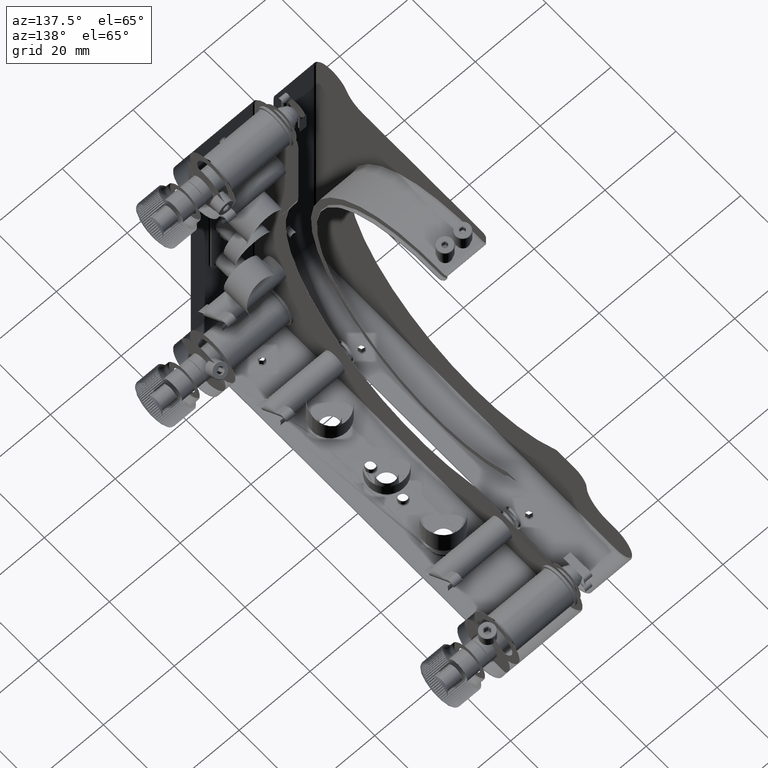
[diagram: clean part render]
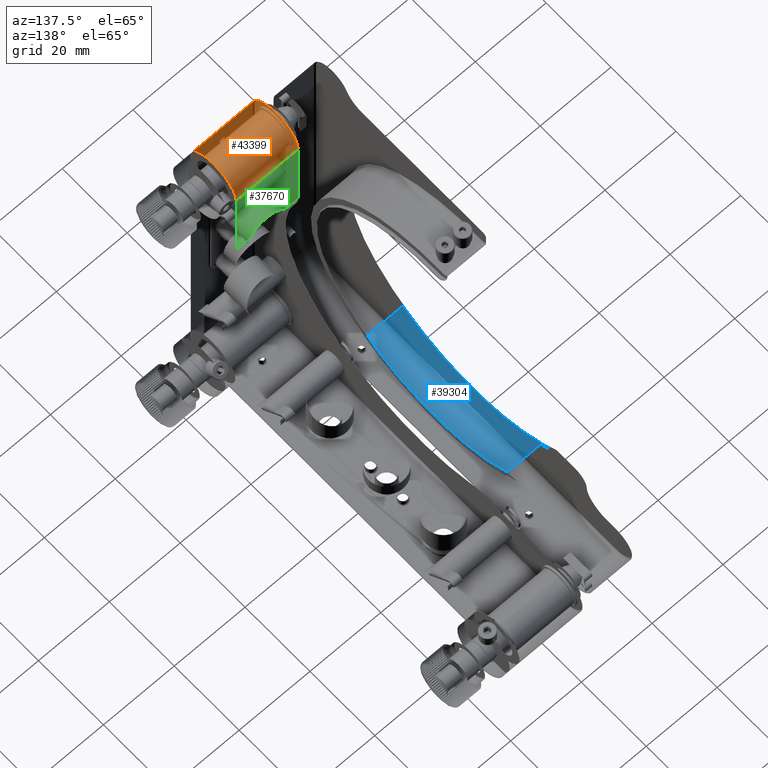
[diagram: same view with three faces highlighted in distinct colors, each labeled with its STEP entity id]
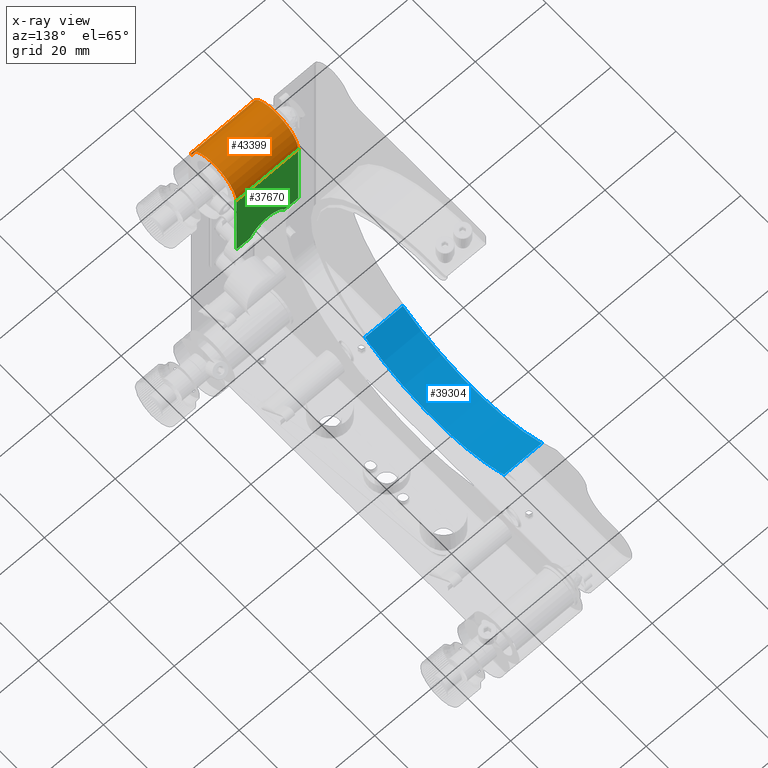
[diagram: x-ray of the same camera — body ghosted, the three highlighted faces saturated]
A machine part, auxiliary view with three faces highlighted in distinct colors.
The next image is the same camera in x-ray (body ghosted, the three faces saturated) — at least one of them is partly hidden behind the body in this view.
Their STEP definitions:

[orange] entity #43399 — the highlighted cylindrical surface (edge-blend (fillet) strip) has radius 7 mm, axis along (-1, 0, 0).
#1553 = DIRECTION ( 'NONE',  ( -1.000000000000000000, 0.000000000000000000, 0.000000000000000000 ) ) ;
#2271 = EDGE_CURVE ( 'NONE', #24433, #32291, #41974, .T. ) ;
#11128 = CARTESIAN_POINT ( 'NONE',  ( 9.000000000000001776, -43.79999999999999716, 43.79999999999998295 ) ) ;
#11200 = VERTEX_POINT ( 'NONE', #26955 ) ;
#13512 = VECTOR ( 'NONE', #36109, 1000.000000000000000 ) ;
#14666 = FACE_OUTER_BOUND ( 'NONE', #39543, .T. ) ;
#16500 = ORIENTED_EDGE ( 'NONE', *, *, #21770, .F. ) ;
#17517 = LINE ( 'NONE', #33767, #53204 ) ;
#19521 = CYLINDRICAL_SURFACE ( 'NONE', #23287, 6.999999999999999112 ) ;
#21770 = EDGE_CURVE ( 'NONE', #29273, #32291, #17517, .T. ) ;
#23280 = DIRECTION ( 'NONE',  ( 0.000000000000000000, 0.000000000000000000, -1.000000000000000000 ) ) ;
#23287 = AXIS2_PLACEMENT_3D ( 'NONE', #11128, #27912, #27643 ) ;
#24433 = VERTEX_POINT ( 'NONE', #43555 ) ;
#26471 = CIRCLE ( 'NONE', #29903, 6.999999999999999112 ) ;
#26831 = CARTESIAN_POINT ( 'NONE',  ( 8.749999999990905053, -36.79999999999277094, 43.79999999999997584 ) ) ;
#26955 = CARTESIAN_POINT ( 'NONE',  ( 8.750000000000000000, -50.79999999999999716, 43.79999999999998295 ) ) ;
#27643 = DIRECTION ( 'NONE',  ( 0.000000000000000000, 0.000000000000000000, 1.000000000000000000 ) ) ;
#27912 = DIRECTION ( 'NONE',  ( -1.000000000000000000, 0.000000000000000000, 0.000000000000000000 ) ) ;
#29273 = VERTEX_POINT ( 'NONE', #26831 ) ;
#29610 = ORIENTED_EDGE ( 'NONE', *, *, #2271, .T. ) ;
#29903 = AXIS2_PLACEMENT_3D ( 'NONE', #38932, #1553, #38394 ) ;
#31500 = LINE ( 'NONE', #36367, #13512 ) ;
#32291 = VERTEX_POINT ( 'NONE', #35415 ) ;
#33214 = DIRECTION ( 'NONE',  ( -1.000000000000000000, -0.000000000000000000, -0.000000000000000000 ) ) ;
#33500 = EDGE_CURVE ( 'NONE', #11200, #29273, #26471, .T. ) ;
#33767 = CARTESIAN_POINT ( 'NONE',  ( -9.000000000000001776, -36.79999999999999716, 43.79999999999998295 ) ) ;
#35415 = CARTESIAN_POINT ( 'NONE',  ( -8.750000000019316104, -36.79999999999277094, 43.79999999999999716 ) ) ;
#35480 = DIRECTION ( 'NONE',  ( -1.000000000000000000, -0.000000000000000000, -0.000000000000000000 ) ) ;
#36109 = DIRECTION ( 'NONE',  ( 1.000000000000000000, 0.000000000000000000, -0.000000000000000000 ) ) ;
#36367 = CARTESIAN_POINT ( 'NONE',  ( 9.000000000000001776, -50.79999999999999716, 43.79999999999998295 ) ) ;
#37659 = AXIS2_PLACEMENT_3D ( 'NONE', #39257, #35480, #23280 ) ;
#38394 = DIRECTION ( 'NONE',  ( 0.000000000000000000, 0.000000000000000000, 1.000000000000000000 ) ) ;
#38932 = CARTESIAN_POINT ( 'NONE',  ( 8.749999999999998224, -43.79999999999999716, 43.79999999999998295 ) ) ;
#39257 = CARTESIAN_POINT ( 'NONE',  ( -8.750000000077307050, -43.79999999999999716, 43.79999999999998295 ) ) ;
#39543 = EDGE_LOOP ( 'NONE', ( #39902, #29610, #16500, #50983 ) ) ;
#39902 = ORIENTED_EDGE ( 'NONE', *, *, #45441, .F. ) ;
#41974 = CIRCLE ( 'NONE', #37659, 7.000000000028906655 ) ;
#43399 = ADVANCED_FACE ( 'NONE', ( #14666 ), #19521, .F. ) ;
#43555 = CARTESIAN_POINT ( 'NONE',  ( -8.750000000019316104, -50.80000000000723048, 43.79999999999998295 ) ) ;
#45441 = EDGE_CURVE ( 'NONE', #24433, #11200, #31500, .T. ) ;
#50983 = ORIENTED_EDGE ( 'NONE', *, *, #33500, .F. ) ;
#53204 = VECTOR ( 'NONE', #33214, 1000.000000000000000 ) ;

[blue] entity #39304 — the highlighted cylindrical surface (partial cylindrical patch) has radius 38.1 mm, axis along (-1, -0, -0).
#1279 = CARTESIAN_POINT ( 'NONE',  ( -13.50000000000001243, -21.41237127944769369, -31.51381214945413234 ) ) ;
#2817 = CARTESIAN_POINT ( 'NONE',  ( -13.50000000000000888, -21.41237127944769014, -31.51381214945413234 ) ) ;
#3221 = VECTOR ( 'NONE', #6565, 1000.000000000000000 ) ;
#3662 = VERTEX_POINT ( 'NONE', #32063 ) ;
#6565 = DIRECTION ( 'NONE',  ( 1.000000000000000000, 7.674958136682377096E-17, 8.466897840272592886E-17 ) ) ;
#8602 = EDGE_CURVE ( 'NONE', #51884, #19920, #33175, .T. ) ;
#9635 = DIRECTION ( 'NONE',  ( -9.106159978880878627E-17, 0.000000000000000000, 1.000000000000000000 ) ) ;
#10821 = DIRECTION ( 'NONE',  ( -1.000000000000000000, -7.674958136682377096E-17, -8.466897840272592886E-17 ) ) ;
#14719 = CARTESIAN_POINT ( 'NONE',  ( -13.50000000000001066, 21.41237127944768659, -31.51381214945413234 ) ) ;
#14903 = CARTESIAN_POINT ( 'NONE',  ( -24.20000000000001350, -8.944667923005411581E-15, 5.475220971051797392E-15 ) ) ;
#16012 = EDGE_CURVE ( 'NONE', #18045, #19920, #28263, .T. ) ;
#16437 = AXIS2_PLACEMENT_3D ( 'NONE', #42639, #21810, #30193 ) ;
#18045 = VERTEX_POINT ( 'NONE', #1279 ) ;
#18550 = FACE_OUTER_BOUND ( 'NONE', #18728, .T. ) ;
#18728 = EDGE_LOOP ( 'NONE', ( #37509, #31040, #23923, #42821 ) ) ;
#19920 = VERTEX_POINT ( 'NONE', #37199 ) ;
#21810 = DIRECTION ( 'NONE',  ( -1.000000000000000000, -7.674958136682377096E-17, -8.466897840272592886E-17 ) ) ;
#23923 = ORIENTED_EDGE ( 'NONE', *, *, #8602, .F. ) ;
#25150 = AXIS2_PLACEMENT_3D ( 'NONE', #43737, #46715, #9635 ) ;
#25860 = CYLINDRICAL_SURFACE ( 'NONE', #16437, 38.09999999999999432 ) ;
#28263 = LINE ( 'NONE', #2817, #35745 ) ;
#30193 = DIRECTION ( 'NONE',  ( -9.106159978880878627E-17, 0.000000000000000000, 1.000000000000000000 ) ) ;
#31040 = ORIENTED_EDGE ( 'NONE', *, *, #16012, .T. ) ;
#32063 = CARTESIAN_POINT ( 'NONE',  ( -13.50000000000001243, 21.41237127944768659, -31.51381214945413234 ) ) ;
#32323 = DIRECTION ( 'NONE',  ( -1.000000000000000000, -7.674958136682377096E-17, -8.466897840272592886E-17 ) ) ;
#33175 = CIRCLE ( 'NONE', #40113, 38.09999999999999432 ) ;
#34668 = CIRCLE ( 'NONE', #25150, 38.09999999999999432 ) ;
#35745 = VECTOR ( 'NONE', #32323, 1000.000000000000000 ) ;
#37199 = CARTESIAN_POINT ( 'NONE',  ( -24.20000000000000639, -21.41237127944769369, -31.51381214945413234 ) ) ;
#37509 = ORIENTED_EDGE ( 'NONE', *, *, #52995, .T. ) ;
#39304 = ADVANCED_FACE ( 'NONE', ( #18550 ), #25860, .T. ) ;
#40113 = AXIS2_PLACEMENT_3D ( 'NONE', #14903, #10821, #44645 ) ;
#42639 = CARTESIAN_POINT ( 'NONE',  ( -13.50000000000001243, -8.131516293641283255E-15, 6.396792817664476161E-15 ) ) ;
#42821 = ORIENTED_EDGE ( 'NONE', *, *, #47506, .T. ) ;
#43666 = LINE ( 'NONE', #14719, #3221 ) ;
#43737 = CARTESIAN_POINT ( 'NONE',  ( -13.50000000000001421, -8.131516293641283255E-15, 6.396792817664476161E-15 ) ) ;
#44645 = DIRECTION ( 'NONE',  ( -9.106159978880878627E-17, 1.000000000000000000, 3.816391647148976224E-17 ) ) ;
#45532 = CARTESIAN_POINT ( 'NONE',  ( -24.20000000000000995, 21.41237127944768304, -31.51381214945413234 ) ) ;
#46715 = DIRECTION ( 'NONE',  ( -1.000000000000000000, -7.674958136682377096E-17, -8.466897840272592886E-17 ) ) ;
#47506 = EDGE_CURVE ( 'NONE', #51884, #3662, #43666, .T. ) ;
#51884 = VERTEX_POINT ( 'NONE', #45532 ) ;
#52995 = EDGE_CURVE ( 'NONE', #3662, #18045, #34668, .T. ) ;

[green] entity #37670 — the highlighted planar face has unit normal (0, -1, 0).
#65 = CARTESIAN_POINT ( 'NONE',  ( -9.000000000000001776, -36.79999999999999716, 19.62963321104090753 ) ) ;
#163 = ORIENTED_EDGE ( 'NONE', *, *, #18342, .T. ) ;
#1258 = VERTEX_POINT ( 'NONE', #44507 ) ;
#2069 = DIRECTION ( 'NONE',  ( 0.000000000000000000, -0.000000000000000000, -1.000000000000000000 ) ) ;
#2749 = AXIS2_PLACEMENT_3D ( 'NONE', #36507, #3703, #48394 ) ;
#3061 = VECTOR ( 'NONE', #48371, 1000.000000000000000 ) ;
#3703 = DIRECTION ( 'NONE',  ( -0.000000000000000000, 1.000000000000000000, 0.000000000000000000 ) ) ;
#6969 = CARTESIAN_POINT ( 'NONE',  ( -8.749999999999987566, -36.79999999999999716, 0.000000000000000000 ) ) ;
#8463 = VECTOR ( 'NONE', #23030, 1000.000000000000000 ) ;
#9926 = PLANE ( 'NONE',  #20640 ) ;
#10599 = EDGE_CURVE ( 'NONE', #42338, #29273, #52431, .T. ) ;
#15001 = ORIENTED_EDGE ( 'NONE', *, *, #10599, .T. ) ;
#17517 = LINE ( 'NONE', #33767, #53204 ) ;
#18342 = EDGE_CURVE ( 'NONE', #1258, #42338, #24997, .T. ) ;
#19277 = EDGE_CURVE ( 'NONE', #43748, #32291, #35700, .T. ) ;
#20539 = VECTOR ( 'NONE', #31619, 1000.000000000000000 ) ;
#20633 = VERTEX_POINT ( 'NONE', #52039 ) ;
#20640 = AXIS2_PLACEMENT_3D ( 'NONE', #39443, #47278, #2069 ) ;
#21770 = EDGE_CURVE ( 'NONE', #29273, #32291, #17517, .T. ) ;
#22098 = EDGE_LOOP ( 'NONE', ( #36265, #163, #15001, #34694, #33693, #45596 ) ) ;
#22118 = FACE_OUTER_BOUND ( 'NONE', #22098, .T. ) ;
#23030 = DIRECTION ( 'NONE',  ( 1.000000000000000000, 0.000000000000000000, 0.000000000000000000 ) ) ;
#24997 = LINE ( 'NONE', #65, #33470 ) ;
#26831 = CARTESIAN_POINT ( 'NONE',  ( 8.749999999990905053, -36.79999999999277094, 43.79999999999997584 ) ) ;
#26963 = CIRCLE ( 'NONE', #2749, 5.256266346200664685 ) ;
#28072 = CARTESIAN_POINT ( 'NONE',  ( 8.750000000000000000, -36.79999999999999716, 50.79999999999998295 ) ) ;
#29273 = VERTEX_POINT ( 'NONE', #26831 ) ;
#31619 = DIRECTION ( 'NONE',  ( -0.000000000000000000, 0.000000000000000000, 1.000000000000000000 ) ) ;
#32291 = VERTEX_POINT ( 'NONE', #35415 ) ;
#33214 = DIRECTION ( 'NONE',  ( -1.000000000000000000, -0.000000000000000000, -0.000000000000000000 ) ) ;
#33470 = VECTOR ( 'NONE', #53416, 1000.000000000000000 ) ;
#33693 = ORIENTED_EDGE ( 'NONE', *, *, #19277, .F. ) ;
#33767 = CARTESIAN_POINT ( 'NONE',  ( -9.000000000000001776, -36.79999999999999716, 43.79999999999998295 ) ) ;
#34694 = ORIENTED_EDGE ( 'NONE', *, *, #21770, .T. ) ;
#35415 = CARTESIAN_POINT ( 'NONE',  ( -8.750000000019316104, -36.79999999999277094, 43.79999999999999716 ) ) ;
#35700 = LINE ( 'NONE', #6969, #20539 ) ;
#36265 = ORIENTED_EDGE ( 'NONE', *, *, #42289, .T. ) ;
#36507 = CARTESIAN_POINT ( 'NONE',  ( 0.000000000000000000, -36.80000000002792149, 17.50000000000001066 ) ) ;
#37670 = ADVANCED_FACE ( 'NONE', ( #22118 ), #9926, .T. ) ;
#39270 = CARTESIAN_POINT ( 'NONE',  ( -9.000000000000001776, -36.79999999999999716, 19.62963321104090753 ) ) ;
#39443 = CARTESIAN_POINT ( 'NONE',  ( -9.000000000000001776, -36.79999999999999716, 50.79999999999998295 ) ) ;
#42289 = EDGE_CURVE ( 'NONE', #20633, #1258, #26963, .T. ) ;
#42338 = VERTEX_POINT ( 'NONE', #44868 ) ;
#42787 = LINE ( 'NONE', #39270, #8463 ) ;
#43748 = VERTEX_POINT ( 'NONE', #47007 ) ;
#44507 = CARTESIAN_POINT ( 'NONE',  ( 4.805517484015096485, -36.80000000001395932, 19.62963321104090753 ) ) ;
#44868 = CARTESIAN_POINT ( 'NONE',  ( 8.750000000000000000, -36.79999999999999716, 19.62963321104090397 ) ) ;
#45596 = ORIENTED_EDGE ( 'NONE', *, *, #48748, .T. ) ;
#47007 = CARTESIAN_POINT ( 'NONE',  ( -8.749999999999985789, -36.79999999999999716, 19.62963321104091108 ) ) ;
#47278 = DIRECTION ( 'NONE',  ( 0.000000000000000000, -1.000000000000000000, 0.000000000000000000 ) ) ;
#48371 = DIRECTION ( 'NONE',  ( -0.000000000000000000, 0.000000000000000000, 1.000000000000000000 ) ) ;
#48394 = DIRECTION ( 'NONE',  ( 0.000000000000000000, 0.000000000000000000, 1.000000000000000000 ) ) ;
#48748 = EDGE_CURVE ( 'NONE', #43748, #20633, #42787, .T. ) ;
#52039 = CARTESIAN_POINT ( 'NONE',  ( -4.805517484011592622, -36.80000000005406946, 19.62963321101945979 ) ) ;
#52431 = LINE ( 'NONE', #28072, #3061 ) ;
#53204 = VECTOR ( 'NONE', #33214, 1000.000000000000000 ) ;
#53416 = DIRECTION ( 'NONE',  ( 1.000000000000000000, 0.000000000000000000, 0.000000000000000000 ) ) ;